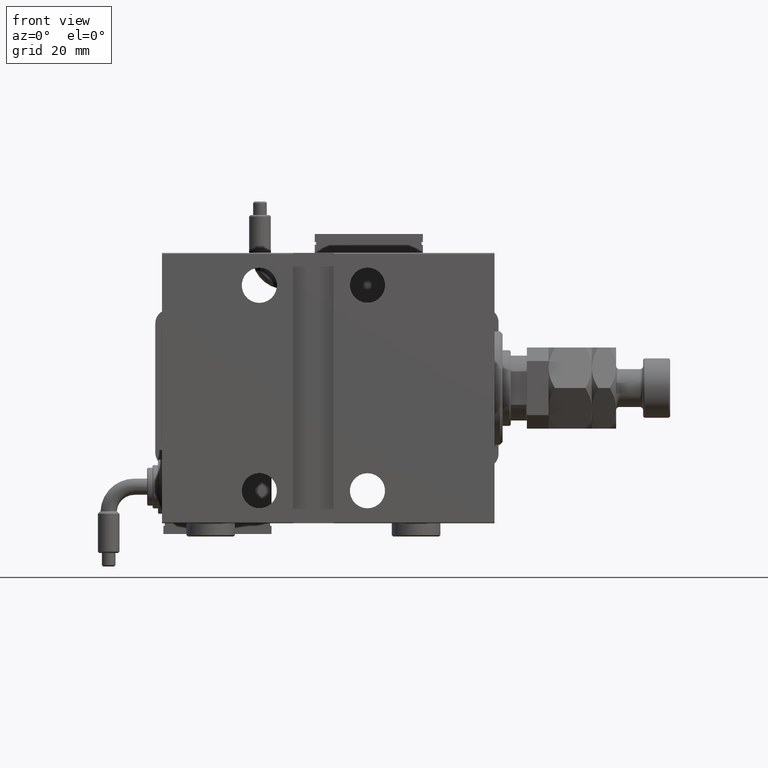
[diagram: clean part render]
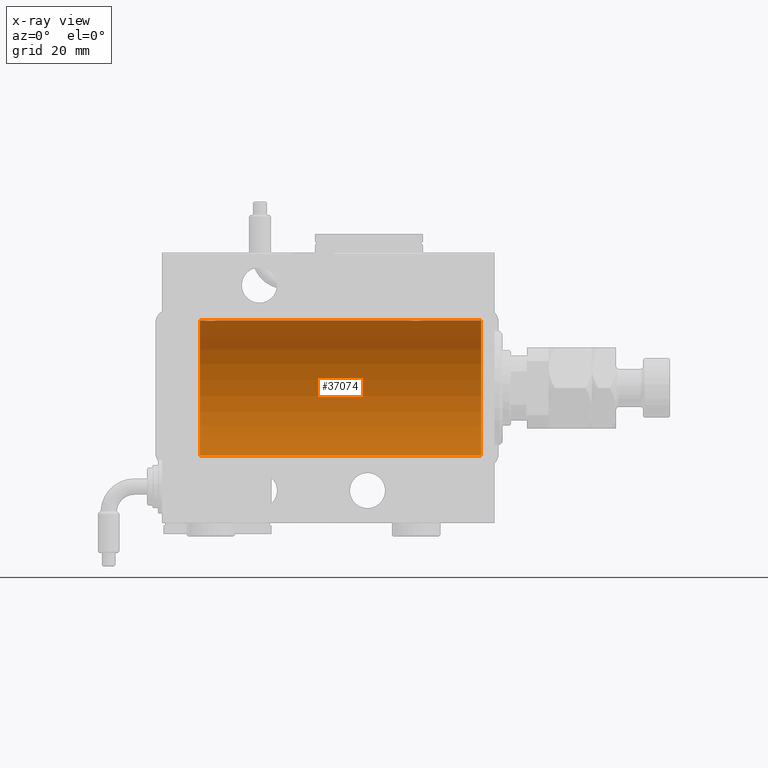
[diagram: x-ray — body ghosted, one internal face saturated and labeled with its STEP entity id]
A machine part, front view, then the same camera in x-ray: the body is ghosted and one INTERNAL B-rep face — a face not visible from any outside direction — is saturated and labeled: STEP entity #37074.
In plain terms, the highlighted cylindrical surface (partial cylindrical patch) has radius 25 mm, axis along (1, 0, -0).
Its self-contained STEP definition (entity closure, byte-faithful):
#659 = CARTESIAN_POINT ( 'NONE',  ( 26.50000000000000355, -1.940558383798427991E-23, 25.00000000000000000 ) ) ;
#1293 = VERTEX_POINT ( 'NONE', #17713 ) ;
#1580 = AXIS2_PLACEMENT_3D ( 'NONE', #40049, #4857, #43879 ) ;
#2366 = FACE_OUTER_BOUND ( 'NONE', #41502, .T. ) ;
#2692 = EDGE_CURVE ( 'NONE', #6132, #56470, #31971, .T. ) ;
#3208 = DIRECTION ( 'NONE',  ( -1.000000000000000000, -0.000000000000000000, -0.000000000000000000 ) ) ;
#3466 = CARTESIAN_POINT ( 'NONE',  ( 102.4999999999999432, -0.1631750940176235343, 25.00000000000000355 ) ) ;
#4074 = EDGE_CURVE ( 'NONE', #13131, #1293, #61186, .T. ) ;
#4320 = VERTEX_POINT ( 'NONE', #16621 ) ;
#4857 = DIRECTION ( 'NONE',  ( -1.000000000000000000, 0.000000000000000000, 0.000000000000000000 ) ) ;
#6106 = CARTESIAN_POINT ( 'NONE',  ( 26.51582159942343608, -0.3254210271412225630, 24.99840249400844883 ) ) ;
#6132 = VERTEX_POINT ( 'NONE', #37784 ) ;
#6382 = EDGE_CURVE ( 'NONE', #13131, #29838, #7356, .T. ) ;
#6424 = CARTESIAN_POINT ( 'NONE',  ( 31.24606379094067066, -1.109818057797417046, 24.97580694515541921 ) ) ;
#6548 = CYLINDRICAL_SURFACE ( 'NONE', #8911, 25.00000000000000000 ) ;
#7160 = DIRECTION ( 'NONE',  ( -1.000000000000000000, 0.000000000000000000, 0.000000000000000000 ) ) ;
#7356 = B_SPLINE_CURVE_WITH_KNOTS ( 'NONE', 3,
 ( #27472, #3466, #31958, #47612, #51483, #47293, #7664, #13708, #61128, #37071, #32881, #56613, #27164, #18193, #12778, #22667, #23291, #57555, #13097, #32581, #46690, #42818, #41891, #61436, #37712, #18498, #52415, #32273, #51802, #7972, #46994, #52738 ),
 .UNSPECIFIED., .F., .F.,
 ( 4, 2, 2, 2, 2, 2, 2, 2, 2, 2, 2, 2, 2, 2, 2, 4 ),
 ( 0.007821024441662341453, 0.008309723826317951326, 0.008798423210973559463, 0.009287122595629169336, 0.009775821980284777474, 0.01026452136494038735, 0.01075322074959599548, 0.01124192013425160536, 0.01173061951890721349, 0.01221931890356282337, 0.01270801828821843324, 0.01319671767287404138, 0.01368541705752964951, 0.01417411644218525939, 0.01466281582684086926, 0.01564021459615210288 ),
 .UNSPECIFIED. ) ;
#7386 = DIRECTION ( 'NONE',  ( -1.000000000000000000, -0.000000000000000000, -0.000000000000000000 ) ) ;
#7664 = CARTESIAN_POINT ( 'NONE',  ( 102.8298870971907775, -1.252049606094350453, 24.96900299967627390 ) ) ;
#7719 = CARTESIAN_POINT ( 'NONE',  ( 109.0000000000000000, 0.000000000000000000, 25.00000000000000000 ) ) ;
#7972 = CARTESIAN_POINT ( 'NONE',  ( 107.4334935523974792, -0.6588655613945869627, 24.99312727339970053 ) ) ;
#8878 = CARTESIAN_POINT ( 'NONE',  ( 102.5000000000000000, -1.940203396391078535E-23, 25.00000000000000000 ) ) ;
#8911 = AXIS2_PLACEMENT_3D ( 'NONE', #54878, #30539, #50067 ) ;
#10267 = CARTESIAN_POINT ( 'NONE',  ( 31.43349355239747567, -0.6588655613945881839, 24.99312727339970053 ) ) ;
#11231 = CARTESIAN_POINT ( 'NONE',  ( 29.32596570039460104, -2.484007091859765204, 24.87630842367763506 ) ) ;
#11843 = VECTOR ( 'NONE', #38029, 1000.000000000000000 ) ;
#12382 = VERTEX_POINT ( 'NONE', #49166 ) ;
#12778 = CARTESIAN_POINT ( 'NONE',  ( 104.3509560983090267, -2.419770561643919127, 24.88263927071750814 ) ) ;
#13097 = CARTESIAN_POINT ( 'NONE',  ( 105.3259657003945904, -2.484007091859774086, 24.87630842367763151 ) ) ;
#13131 = VERTEX_POINT ( 'NONE', #8878 ) ;
#13216 = DIRECTION ( 'NONE',  ( 0.000000000000000000, 0.000000000000000000, 1.000000000000000000 ) ) ;
#13708 = CARTESIAN_POINT ( 'NONE',  ( 103.0125018416559897, -1.525407911884377965, 24.95379469572361941 ) ) ;
#13760 = AXIS2_PLACEMENT_3D ( 'NONE', #36883, #7160, #13216 ) ;
#14485 = ORIENTED_EDGE ( 'NONE', *, *, #49555, .T. ) ;
#15076 = CARTESIAN_POINT ( 'NONE',  ( 27.47463817756919369, -1.987446652080264720, 24.92104239223420592 ) ) ;
#15701 = CARTESIAN_POINT ( 'NONE',  ( 27.34616663850662377, -1.881857718844717642, 24.92933960374833902 ) ) ;
#15735 = VECTOR ( 'NONE', #7386, 1000.000000000000000 ) ;
#16032 = CARTESIAN_POINT ( 'NONE',  ( 28.83293504821940090, -2.499872792855082793, 24.87469871246082320 ) ) ;
#16365 = CARTESIAN_POINT ( 'NONE',  ( 109.0000000000000000, 0.000000000000000000, 25.00000000000000000 ) ) ;
#16621 = CARTESIAN_POINT ( 'NONE',  ( 109.0000000000000000, 3.061616997868383043E-15, -25.00000000000000000 ) ) ;
#17713 = CARTESIAN_POINT ( 'NONE',  ( 31.50000000000000000, -3.359922002512890391E-15, 25.00000000000000000 ) ) ;
#18085 = ORIENTED_EDGE ( 'NONE', *, *, #2692, .F. ) ;
#18193 = CARTESIAN_POINT ( 'NONE',  ( 104.1921165759419381, -2.371528299825759856, 24.88734287464370709 ) ) ;
#18498 = CARTESIAN_POINT ( 'NONE',  ( 106.8818595414864632, -1.653834020452947362, 24.94550385189584318 ) ) ;
#20517 = VECTOR ( 'NONE', #56736, 1000.000000000000000 ) ;
#21139 = CARTESIAN_POINT ( 'NONE',  ( 30.98538033717094464, -1.528152964861312801, 24.95362559291378801 ) ) ;
#22480 = CARTESIAN_POINT ( 'NONE',  ( 109.0000000000000000, 3.061616997868383043E-15, -25.00000000000000000 ) ) ;
#22667 = CARTESIAN_POINT ( 'NONE',  ( 104.6705231988572962, -2.483544361357281627, 24.87635491893501793 ) ) ;
#23213 = ORIENTED_EDGE ( 'NONE', *, *, #6382, .T. ) ;
#23291 = CARTESIAN_POINT ( 'NONE',  ( 104.8329350482193973, -2.499872792855093451, 24.87469871246082320 ) ) ;
#23864 = ORIENTED_EDGE ( 'NONE', *, *, #47619, .T. ) ;
#23991 = CARTESIAN_POINT ( 'NONE',  ( 5.000000000000004441, 3.061616997868383043E-15, -25.00000000000000000 ) ) ;
#24654 = CARTESIAN_POINT ( 'NONE',  ( 30.65121133559112820, -1.884161199660616459, 24.92916496727982434 ) ) ;
#24889 = ORIENTED_EDGE ( 'NONE', *, *, #30084, .T. ) ;
#25301 = CARTESIAN_POINT ( 'NONE',  ( 28.19211657594193809, -2.371528299825749198, 24.88734287464370709 ) ) ;
#25929 = CARTESIAN_POINT ( 'NONE',  ( 26.62784030591392792, -0.8058335233485480753, 24.98746277938383287 ) ) ;
#27164 = CARTESIAN_POINT ( 'NONE',  ( 103.8896320349113722, -2.245863995402913371, 24.89899750494197050 ) ) ;
#27472 = CARTESIAN_POINT ( 'NONE',  ( 102.5000000000000000, -1.940203396391078535E-23, 25.00000000000000000 ) ) ;
#29031 = EDGE_CURVE ( 'NONE', #12382, #29838, #50596, .T. ) ;
#29764 = CARTESIAN_POINT ( 'NONE',  ( 31.49999999999998579, -0.3305063766663721148, 25.00000000000000000 ) ) ;
#29838 = VERTEX_POINT ( 'NONE', #52613 ) ;
#30084 = EDGE_CURVE ( 'NONE', #45070, #56470, #61791, .T. ) ;
#30087 = CARTESIAN_POINT ( 'NONE',  ( 27.74616804575498108, -2.169003991399871989, 24.90589728951138326 ) ) ;
#30539 = DIRECTION ( 'NONE',  ( -1.000000000000000000, -0.000000000000000000, -0.000000000000000000 ) ) ;
#31954 = EDGE_CURVE ( 'NONE', #4320, #12382, #33234, .T. ) ;
#31958 = CARTESIAN_POINT ( 'NONE',  ( 102.5158215994234183, -0.3254210271412264488, 24.99840249400844883 ) ) ;
#31971 = LINE ( 'NONE', #32892, #11843 ) ;
#32273 = CARTESIAN_POINT ( 'NONE',  ( 107.1682764149395553, -1.255214705003179221, 24.96884293994577675 ) ) ;
#32581 = CARTESIAN_POINT ( 'NONE',  ( 105.6456066614863119, -2.420689345803769044, 24.88254961038873958 ) ) ;
#32881 = CARTESIAN_POINT ( 'NONE',  ( 103.4746381775692043, -1.987446652080271159, 24.92104239223420592 ) ) ;
#32892 = CARTESIAN_POINT ( 'NONE',  ( 109.0000000000000000, 0.000000000000000000, 25.00000000000000000 ) ) ;
#33234 = CIRCLE ( 'NONE', #1580, 25.00000000000000000 ) ;
#34569 = CARTESIAN_POINT ( 'NONE',  ( 29.64560666148631896, -2.420689345803761050, 24.88254961038873958 ) ) ;
#34879 = CARTESIAN_POINT ( 'NONE',  ( 27.11587617213528745, -1.651251241585102836, 24.94567559498349141 ) ) ;
#35201 = CARTESIAN_POINT ( 'NONE',  ( 28.35095609830903740, -2.419770561643910689, 24.88263927071751169 ) ) ;
#35846 = CARTESIAN_POINT ( 'NONE',  ( 26.75239748980449761, -1.106703319666885399, 24.97594585958023572 ) ) ;
#36883 = CARTESIAN_POINT ( 'NONE',  ( 5.000000000000004441, 0.000000000000000000, 0.000000000000000000 ) ) ;
#37071 = CARTESIAN_POINT ( 'NONE',  ( 103.3461666385066025, -1.881857718844725857, 24.92933960374833546 ) ) ;
#37074 = ADVANCED_FACE ( 'NONE', ( #2366 ), #6548, .F. ) ;
#37533 = ORIENTED_EDGE ( 'NONE', *, *, #31954, .F. ) ;
#37712 = CARTESIAN_POINT ( 'NONE',  ( 106.6512113355911566, -1.884161199660627561, 24.92916496727982789 ) ) ;
#37784 = CARTESIAN_POINT ( 'NONE',  ( 26.50000000000000355, -1.940558383798427991E-23, 25.00000000000000000 ) ) ;
#38029 = DIRECTION ( 'NONE',  ( -1.000000000000000000, -0.000000000000000000, -0.000000000000000000 ) ) ;
#39711 = CARTESIAN_POINT ( 'NONE',  ( 30.25084023924055998, -2.170728182476720391, 24.90574631553725027 ) ) ;
#40049 = CARTESIAN_POINT ( 'NONE',  ( 109.0000000000000000, 0.000000000000000000, 0.000000000000000000 ) ) ;
#40339 = CARTESIAN_POINT ( 'NONE',  ( 27.01250184165601809, -1.525407911884367085, 24.95379469572361941 ) ) ;
#40672 = CARTESIAN_POINT ( 'NONE',  ( 26.50000000000000711, -0.1631750940176214526, 25.00000000000000711 ) ) ;
#41502 = EDGE_LOOP ( 'NONE', ( #37533, #14485, #24889, #18085, #23864, #43019, #23213, #50001 ) ) ;
#41891 = CARTESIAN_POINT ( 'NONE',  ( 106.2508402392405458, -2.170728182476731938, 24.90574631553725027 ) ) ;
#42818 = CARTESIAN_POINT ( 'NONE',  ( 106.1072384583841028, -2.247417070759907709, 24.89885693081946272 ) ) ;
#43019 = ORIENTED_EDGE ( 'NONE', *, *, #4074, .F. ) ;
#43879 = DIRECTION ( 'NONE',  ( 0.000000000000000000, 0.000000000000000000, 1.000000000000000000 ) ) ;
#44821 = CARTESIAN_POINT ( 'NONE',  ( 30.10723845838410284, -2.247417070759897495, 24.89885693081946272 ) ) ;
#45070 = VERTEX_POINT ( 'NONE', #23991 ) ;
#46690 = CARTESIAN_POINT ( 'NONE',  ( 105.8043566091630083, -2.372734907014184991, 24.88722742718433523 ) ) ;
#46994 = CARTESIAN_POINT ( 'NONE',  ( 107.5000000000000426, -0.3305063766663758895, 25.00000000000000355 ) ) ;
#47293 = CARTESIAN_POINT ( 'NONE',  ( 102.7523974898045083, -1.106703319666891838, 24.97594585958023217 ) ) ;
#47612 = CARTESIAN_POINT ( 'NONE',  ( 102.5798509077906999, -0.6480119923854288366, 24.99212088949390775 ) ) ;
#47619 = EDGE_CURVE ( 'NONE', #6132, #1293, #48946, .T. ) ;
#48946 = B_SPLINE_CURVE_WITH_KNOTS ( 'NONE', 3,
 ( #659, #40672, #6106, #59892, #25929, #35846, #55075, #40339, #34879, #15701, #15076, #30087, #58931, #25301, #35201, #54423, #16032, #59250, #11231, #34569, #50253, #44821, #39711, #60216, #24654, #55385, #21139, #54113, #6424, #10267, #29764, #49297 ),
 .UNSPECIFIED., .F., .F.,
 ( 4, 2, 2, 2, 2, 2, 2, 2, 2, 2, 2, 2, 2, 2, 2, 4 ),
 ( 0.007821024441662275534, 0.008309723826317880202, 0.008798423210973486605, 0.009287122595629093008, 0.009775821980284697676, 0.01026452136494030234, 0.01075322074959590875, 0.01124192013425151515, 0.01173061951890711982, 0.01221931890356272449, 0.01270801828821833089, 0.01319671767287393729, 0.01368541705752954196, 0.01417411644218514663, 0.01466281582684075303, 0.01564021459615196410 ),
 .UNSPECIFIED. ) ;
#49166 = CARTESIAN_POINT ( 'NONE',  ( 109.0000000000000000, 0.000000000000000000, 25.00000000000000000 ) ) ;
#49297 = CARTESIAN_POINT ( 'NONE',  ( 31.50000000000000000, -3.359922002512890391E-15, 25.00000000000000000 ) ) ;
#49555 = EDGE_CURVE ( 'NONE', #4320, #45070, #51602, .T. ) ;
#50001 = ORIENTED_EDGE ( 'NONE', *, *, #29031, .F. ) ;
#50067 = DIRECTION ( 'NONE',  ( 0.000000000000000000, 0.000000000000000000, 1.000000000000000000 ) ) ;
#50253 = CARTESIAN_POINT ( 'NONE',  ( 29.80435660916301899, -2.372734907014175665, 24.88722742718433878 ) ) ;
#50596 = LINE ( 'NONE', #16365, #15735 ) ;
#51483 = CARTESIAN_POINT ( 'NONE',  ( 102.6278403059139350, -0.8058335233485532934, 24.98746277938383287 ) ) ;
#51602 = LINE ( 'NONE', #22480, #20517 ) ;
#51802 = CARTESIAN_POINT ( 'NONE',  ( 107.2460637909406813, -1.109818057797417490, 24.97580694515541921 ) ) ;
#52415 = CARTESIAN_POINT ( 'NONE',  ( 106.9853803371709375, -1.528152964861310803, 24.95362559291378091 ) ) ;
#52613 = CARTESIAN_POINT ( 'NONE',  ( 107.5000000000000000, 2.971051067387116602E-15, 25.00000000000000000 ) ) ;
#52738 = CARTESIAN_POINT ( 'NONE',  ( 107.5000000000000000, 2.971051067387116602E-15, 25.00000000000000000 ) ) ;
#54113 = CARTESIAN_POINT ( 'NONE',  ( 31.16827641493957302, -1.255214705003183440, 24.96884293994578385 ) ) ;
#54423 = CARTESIAN_POINT ( 'NONE',  ( 28.67052319885732103, -2.483544361357271857, 24.87635491893501438 ) ) ;
#54878 = CARTESIAN_POINT ( 'NONE',  ( 109.0000000000000000, 0.000000000000000000, 0.000000000000000000 ) ) ;
#55075 = CARTESIAN_POINT ( 'NONE',  ( 26.82988709719076681, -1.252049606094339795, 24.96900299967627390 ) ) ;
#55385 = CARTESIAN_POINT ( 'NONE',  ( 30.88185954148645962, -1.653834020452937814, 24.94550385189585029 ) ) ;
#56470 = VERTEX_POINT ( 'NONE', #58088 ) ;
#56613 = CARTESIAN_POINT ( 'NONE',  ( 103.7461680457549846, -2.169003991399879983, 24.90589728951138326 ) ) ;
#56736 = DIRECTION ( 'NONE',  ( -1.000000000000000000, -0.000000000000000000, -0.000000000000000000 ) ) ;
#57555 = CARTESIAN_POINT ( 'NONE',  ( 105.1632358963854159, -2.500125740978206057, 24.87467329022545570 ) ) ;
#58088 = CARTESIAN_POINT ( 'NONE',  ( 5.000000000000004441, 0.000000000000000000, 25.00000000000000000 ) ) ;
#58931 = CARTESIAN_POINT ( 'NONE',  ( 27.88963203491136156, -2.245863995402901381, 24.89899750494197050 ) ) ;
#59250 = CARTESIAN_POINT ( 'NONE',  ( 29.16323589638543723, -2.500125740978195843, 24.87467329022545570 ) ) ;
#59892 = CARTESIAN_POINT ( 'NONE',  ( 26.57985090779070347, -0.6480119923854229524, 24.99212088949390420 ) ) ;
#60216 = CARTESIAN_POINT ( 'NONE',  ( 30.52256774340189693, -1.989585286700245037, 24.92087098724766747 ) ) ;
#61128 = CARTESIAN_POINT ( 'NONE',  ( 103.1158761721352732, -1.651251241585110163, 24.94567559498348430 ) ) ;
#61186 = LINE ( 'NONE', #7719, #63007 ) ;
#61436 = CARTESIAN_POINT ( 'NONE',  ( 106.5225677434019502, -1.989585286700258138, 24.92087098724766747 ) ) ;
#61791 = CIRCLE ( 'NONE', #13760, 25.00000000000000000 ) ;
#63007 = VECTOR ( 'NONE', #3208, 1000.000000000000000 ) ;